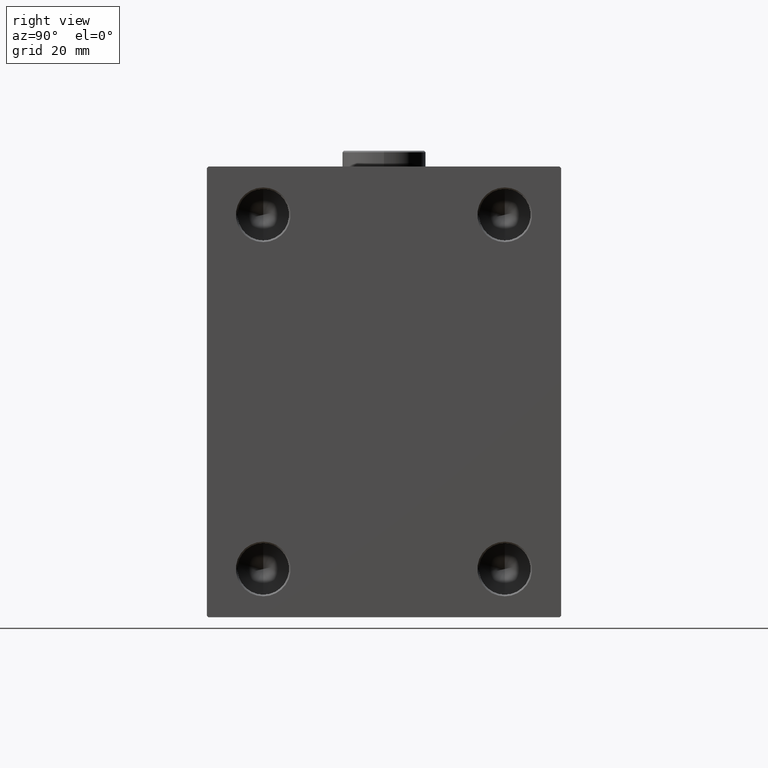
[diagram: clean part render]
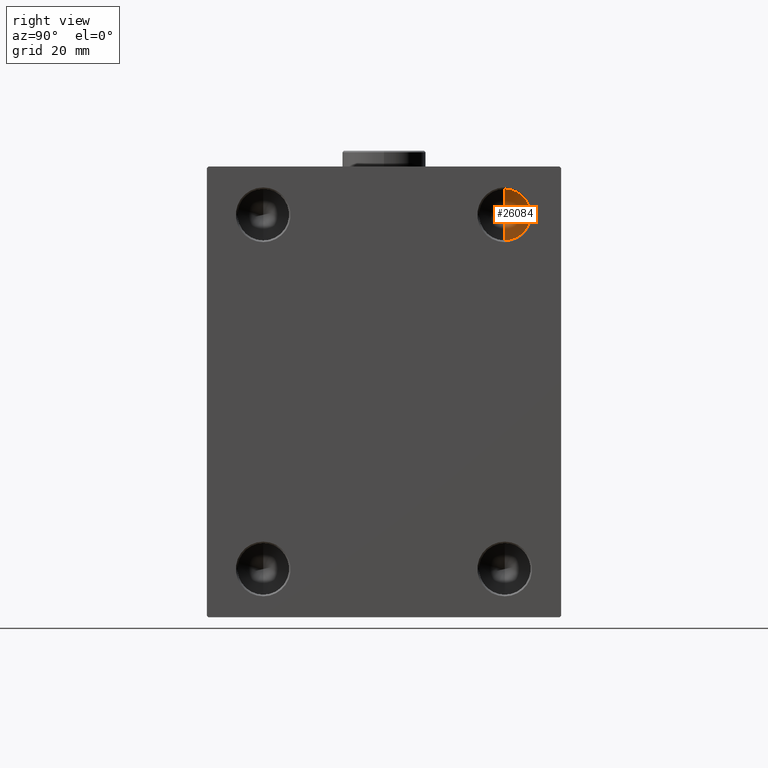
[diagram: same view with one face highlighted and labeled with its STEP entity id]
A machine part, right view. The second image highlights one B-rep face of the part: STEP entity #26084.
In plain terms, the highlighted conical surface has half-angle 59 deg.
Its self-contained STEP definition (entity closure, byte-faithful):
#2554 = VECTOR ( 'NONE', #25479, 1000.000000000000000 ) ;
#2757 = DIRECTION ( 'NONE',  ( 0.5150380749100550437, -1.049727191138617956E-16, -0.8571673007021117785 ) ) ;
#3879 = CARTESIAN_POINT ( 'NONE',  ( 93.00000000000000000, 37.50000000000000000, 55.00000000000000711 ) ) ;
#5720 = CARTESIAN_POINT ( 'NONE',  ( 88.19311504777951427, 37.49999999999999289, 55.00000000000000711 ) ) ;
#13214 = VERTEX_POINT ( 'NONE', #5720 ) ;
#14107 = EDGE_CURVE ( 'NONE', #41046, #20437, #35478, .T. ) ;
#14237 = DIRECTION ( 'NONE',  ( 0.000000000000000000, 0.000000000000000000, 1.000000000000000000 ) ) ;
#15655 = AXIS2_PLACEMENT_3D ( 'NONE', #22750, #19527, #33567 ) ;
#17332 = VECTOR ( 'NONE', #2757, 1000.000000000000000 ) ;
#18522 = ORIENTED_EDGE ( 'NONE', *, *, #35740, .F. ) ;
#19264 = LINE ( 'NONE', #33297, #2554 ) ;
#19527 = DIRECTION ( 'NONE',  ( -1.000000000000000000, 0.000000000000000000, 0.000000000000000000 ) ) ;
#20437 = VERTEX_POINT ( 'NONE', #26324 ) ;
#22750 = CARTESIAN_POINT ( 'NONE',  ( 93.00000000000000000, 37.50000000000000000, 55.00000000000000711 ) ) ;
#24147 = LINE ( 'NONE', #44618, #17332 ) ;
#25174 = ORIENTED_EDGE ( 'NONE', *, *, #14107, .F. ) ;
#25266 = FACE_OUTER_BOUND ( 'NONE', #36060, .T. ) ;
#25479 = DIRECTION ( 'NONE',  ( 0.5150380749100550437, 0.000000000000000000, 0.8571673007021117785 ) ) ;
#26084 = ADVANCED_FACE ( 'NONE', ( #25266 ), #34342, .F. ) ;
#26324 = CARTESIAN_POINT ( 'NONE',  ( 93.00000000000000000, 37.50000000000000000, 47.00000000000001421 ) ) ;
#30659 = AXIS2_PLACEMENT_3D ( 'NONE', #3879, #39292, #14237 ) ;
#33045 = CARTESIAN_POINT ( 'NONE',  ( 93.00000000000000000, 37.50000000000000000, 63.00000000000000000 ) ) ;
#33297 = CARTESIAN_POINT ( 'NONE',  ( 93.00000000000000000, 37.50000000000000000, 63.00000000000000000 ) ) ;
#33567 = DIRECTION ( 'NONE',  ( 0.000000000000000000, 0.000000000000000000, 1.000000000000000000 ) ) ;
#34342 = CONICAL_SURFACE ( 'NONE', #30659, 7.999999999999992895, 1.029744258676653423 ) ;
#35478 = CIRCLE ( 'NONE', #15655, 7.999999999999992895 ) ;
#35740 = EDGE_CURVE ( 'NONE', #13214, #41046, #19264, .T. ) ;
#36060 = EDGE_LOOP ( 'NONE', ( #18522, #43921, #25174 ) ) ;
#39108 = EDGE_CURVE ( 'NONE', #13214, #20437, #24147, .T. ) ;
#39292 = DIRECTION ( 'NONE',  ( 1.000000000000000000, -0.000000000000000000, -0.000000000000000000 ) ) ;
#41046 = VERTEX_POINT ( 'NONE', #33045 ) ;
#43921 = ORIENTED_EDGE ( 'NONE', *, *, #39108, .T. ) ;
#44618 = CARTESIAN_POINT ( 'NONE',  ( 93.00000000000000000, 37.50000000000000000, 47.00000000000001421 ) ) ;